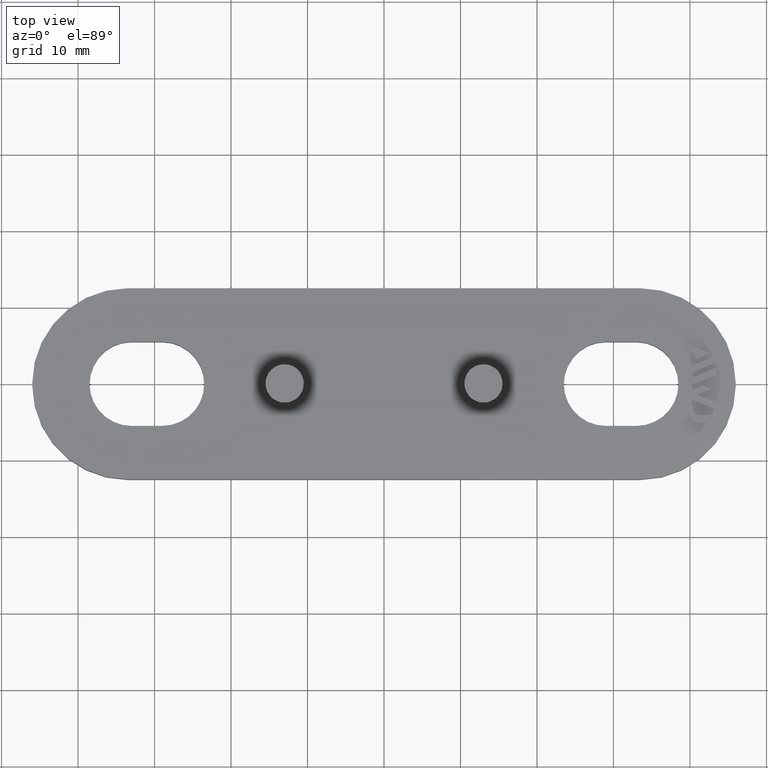
[diagram: clean part render]
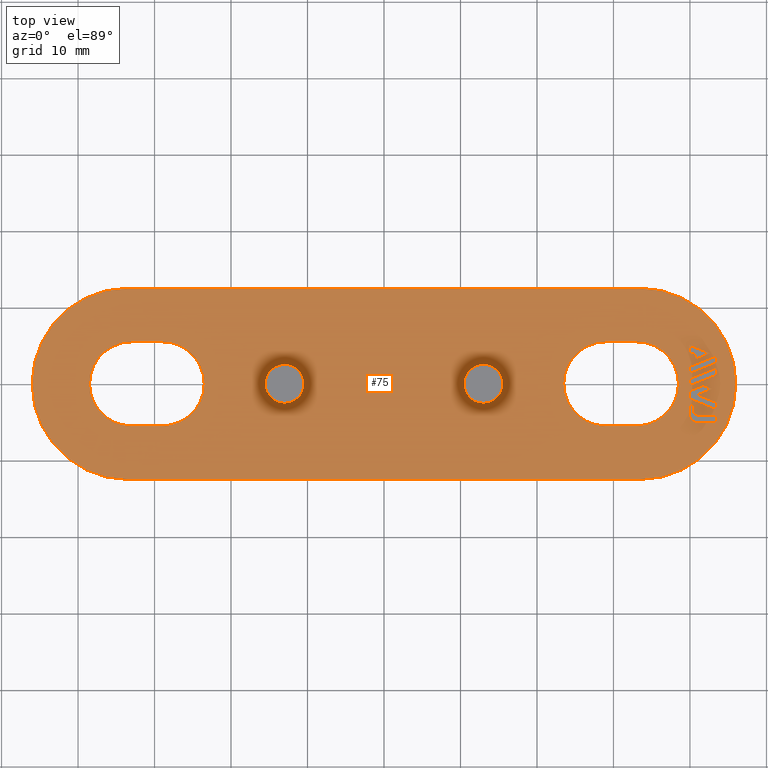
[diagram: same view with one face highlighted and labeled with its STEP entity id]
A machine part, top view. The second image highlights one B-rep face of the part: STEP entity #75.
In plain terms, the highlighted planar face has unit normal (0, -0, -1).
Its self-contained STEP definition (entity closure, byte-faithful):
#75 = ADVANCED_FACE( '', ( #362, #363, #364, #365, #366, #367, #368, #369, #370, #371 ), #372, .F. );
#362 = FACE_BOUND( '', #986, .T. );
#363 = FACE_BOUND( '', #987, .T. );
#364 = FACE_BOUND( '', #988, .T. );
#365 = FACE_OUTER_BOUND( '', #989, .T. );
#366 = FACE_BOUND( '', #990, .T. );
#367 = FACE_BOUND( '', #991, .T. );
#368 = FACE_BOUND( '', #992, .T. );
#369 = FACE_BOUND( '', #993, .T. );
#370 = FACE_BOUND( '', #994, .T. );
#371 = FACE_BOUND( '', #995, .T. );
#372 = PLANE( '', #996 );
#986 = EDGE_LOOP( '', ( #1610, #1611, #1612, #1613, #1614, #1615, #1616 ) );
#987 = EDGE_LOOP( '', ( #1617, #1618, #1619, #1620 ) );
#988 = EDGE_LOOP( '', ( #1621, #1622, #1623, #1624, #1625, #1626 ) );
#989 = EDGE_LOOP( '', ( #1627, #1628, #1629, #1630, #1631, #1632 ) );
#990 = EDGE_LOOP( '', ( #1633, #1634, #1635, #1636, #1637, #1638 ) );
#991 = EDGE_LOOP( '', ( #1639 ) );
#992 = EDGE_LOOP( '', ( #1640 ) );
#993 = EDGE_LOOP( '', ( #1641, #1642, #1643, #1644, #1645 ) );
#994 = EDGE_LOOP( '', ( #1646, #1647, #1648, #1649 ) );
#995 = EDGE_LOOP( '', ( #1650, #1651, #1652, #1653, #1654, #1655, #1656, #1657 ) );
#996 = AXIS2_PLACEMENT_3D( '', #1658, #1659, #1660 );
#1610 = ORIENTED_EDGE( '', *, *, #3908, .F. );
#1611 = ORIENTED_EDGE( '', *, *, #3909, .F. );
#1612 = ORIENTED_EDGE( '', *, *, #3910, .F. );
#1613 = ORIENTED_EDGE( '', *, *, #3911, .F. );
#1614 = ORIENTED_EDGE( '', *, *, #3912, .F. );
#1615 = ORIENTED_EDGE( '', *, *, #3913, .F. );
#1616 = ORIENTED_EDGE( '', *, *, #3914, .F. );
#1617 = ORIENTED_EDGE( '', *, *, #3915, .F. );
#1618 = ORIENTED_EDGE( '', *, *, #3916, .F. );
#1619 = ORIENTED_EDGE( '', *, *, #3917, .F. );
#1620 = ORIENTED_EDGE( '', *, *, #3918, .F. );
#1621 = ORIENTED_EDGE( '', *, *, #3919, .F. );
#1622 = ORIENTED_EDGE( '', *, *, #3920, .F. );
#1623 = ORIENTED_EDGE( '', *, *, #3921, .F. );
#1624 = ORIENTED_EDGE( '', *, *, #3922, .F. );
#1625 = ORIENTED_EDGE( '', *, *, #3923, .F. );
#1626 = ORIENTED_EDGE( '', *, *, #3924, .F. );
#1627 = ORIENTED_EDGE( '', *, *, #3925, .F. );
#1628 = ORIENTED_EDGE( '', *, *, #3926, .F. );
#1629 = ORIENTED_EDGE( '', *, *, #3927, .F. );
#1630 = ORIENTED_EDGE( '', *, *, #3928, .F. );
#1631 = ORIENTED_EDGE( '', *, *, #3929, .F. );
#1632 = ORIENTED_EDGE( '', *, *, #3930, .F. );
#1633 = ORIENTED_EDGE( '', *, *, #3931, .F. );
#1634 = ORIENTED_EDGE( '', *, *, #3932, .F. );
#1635 = ORIENTED_EDGE( '', *, *, #3933, .F. );
#1636 = ORIENTED_EDGE( '', *, *, #3934, .F. );
#1637 = ORIENTED_EDGE( '', *, *, #3935, .F. );
#1638 = ORIENTED_EDGE( '', *, *, #3936, .F. );
#1639 = ORIENTED_EDGE( '', *, *, #3937, .T. );
#1640 = ORIENTED_EDGE( '', *, *, #3938, .T. );
#1641 = ORIENTED_EDGE( '', *, *, #3939, .F. );
#1642 = ORIENTED_EDGE( '', *, *, #3940, .F. );
#1643 = ORIENTED_EDGE( '', *, *, #3941, .F. );
#1644 = ORIENTED_EDGE( '', *, *, #3942, .F. );
#1645 = ORIENTED_EDGE( '', *, *, #3943, .F. );
#1646 = ORIENTED_EDGE( '', *, *, #3944, .F. );
#1647 = ORIENTED_EDGE( '', *, *, #3945, .F. );
#1648 = ORIENTED_EDGE( '', *, *, #3946, .F. );
#1649 = ORIENTED_EDGE( '', *, *, #3947, .F. );
#1650 = ORIENTED_EDGE( '', *, *, #3948, .F. );
#1651 = ORIENTED_EDGE( '', *, *, #3949, .F. );
#1652 = ORIENTED_EDGE( '', *, *, #3950, .F. );
#1653 = ORIENTED_EDGE( '', *, *, #3951, .F. );
#1654 = ORIENTED_EDGE( '', *, *, #3952, .F. );
#1655 = ORIENTED_EDGE( '', *, *, #3953, .F. );
#1656 = ORIENTED_EDGE( '', *, *, #3954, .F. );
#1657 = ORIENTED_EDGE( '', *, *, #3955, .F. );
#1658 = CARTESIAN_POINT( '', ( 33.5000000000000, -8.36746579142844E-015, 4.99999999999998 ) );
#1659 = DIRECTION( '', ( 0.000000000000000, -6.12303176911189E-017, -1.00000000000000 ) );
#1660 = DIRECTION( '', ( 0.000000000000000, -1.00000000000000, 6.12303176911189E-017 ) );
#3908 = EDGE_CURVE( '', #4628, #4629, #4630, .T. );
#3909 = EDGE_CURVE( '', #4631, #4628, #4632, .T. );
#3910 = EDGE_CURVE( '', #4633, #4631, #4634, .T. );
#3911 = EDGE_CURVE( '', #4635, #4633, #4636, .T. );
#3912 = EDGE_CURVE( '', #4637, #4635, #4638, .T. );
#3913 = EDGE_CURVE( '', #4639, #4637, #4640, .T. );
#3914 = EDGE_CURVE( '', #4629, #4639, #4641, .T. );
#3915 = EDGE_CURVE( '', #4642, #4643, #4644, .T. );
#3916 = EDGE_CURVE( '', #4645, #4642, #4646, .T. );
#3917 = EDGE_CURVE( '', #4647, #4645, #4648, .T. );
#3918 = EDGE_CURVE( '', #4643, #4647, #4649, .T. );
#3919 = EDGE_CURVE( '', #4650, #4651, #4652, .T. );
#3920 = EDGE_CURVE( '', #4653, #4650, #4654, .T. );
#3921 = EDGE_CURVE( '', #4655, #4653, #4656, .T. );
#3922 = EDGE_CURVE( '', #4657, #4655, #4658, .T. );
#3923 = EDGE_CURVE( '', #4659, #4657, #4660, .T. );
#3924 = EDGE_CURVE( '', #4651, #4659, #4661, .T. );
#3925 = EDGE_CURVE( '', #4662, #4663, #4664, .T. );
#3926 = EDGE_CURVE( '', #4665, #4662, #4666, .T. );
#3927 = EDGE_CURVE( '', #4667, #4665, #4668, .T. );
#3928 = EDGE_CURVE( '', #4669, #4667, #4670, .T. );
#3929 = EDGE_CURVE( '', #4671, #4669, #4672, .T. );
#3930 = EDGE_CURVE( '', #4663, #4671, #4673, .T. );
#3931 = EDGE_CURVE( '', #4674, #4675, #4676, .T. );
#3932 = EDGE_CURVE( '', #4677, #4674, #4678, .T. );
#3933 = EDGE_CURVE( '', #4679, #4677, #4680, .T. );
#3934 = EDGE_CURVE( '', #4681, #4679, #4682, .T. );
#3935 = EDGE_CURVE( '', #4683, #4681, #4684, .T. );
#3936 = EDGE_CURVE( '', #4675, #4683, #4685, .T. );
#3937 = EDGE_CURVE( '', #4686, #4686, #4687, .T. );
#3938 = EDGE_CURVE( '', #4688, #4688, #4689, .T. );
#3939 = EDGE_CURVE( '', #4690, #4691, #4692, .T. );
#3940 = EDGE_CURVE( '', #4693, #4690, #4694, .T. );
#3941 = EDGE_CURVE( '', #4695, #4693, #4696, .T. );
#3942 = EDGE_CURVE( '', #4697, #4695, #4698, .T. );
#3943 = EDGE_CURVE( '', #4691, #4697, #4699, .T. );
#3944 = EDGE_CURVE( '', #4700, #4701, #4702, .T. );
#3945 = EDGE_CURVE( '', #4703, #4700, #4704, .T. );
#3946 = EDGE_CURVE( '', #4705, #4703, #4706, .T. );
#3947 = EDGE_CURVE( '', #4701, #4705, #4707, .T. );
#3948 = EDGE_CURVE( '', #4708, #4709, #4710, .T. );
#3949 = EDGE_CURVE( '', #4711, #4708, #4712, .T. );
#3950 = EDGE_CURVE( '', #4713, #4711, #4714, .T. );
#3951 = EDGE_CURVE( '', #4715, #4713, #4716, .T. );
#3952 = EDGE_CURVE( '', #4717, #4715, #4718, .T. );
#3953 = EDGE_CURVE( '', #4719, #4717, #4720, .T. );
#3954 = EDGE_CURVE( '', #4721, #4719, #4722, .T. );
#3955 = EDGE_CURVE( '', #4709, #4721, #4723, .T. );
#4628 = VERTEX_POINT( '', #5832 );
#4629 = VERTEX_POINT( '', #5833 );
#4630 = LINE( '', #5834, #5835 );
#4631 = VERTEX_POINT( '', #5836 );
#4632 = LINE( '', #5837, #5838 );
#4633 = VERTEX_POINT( '', #5839 );
#4634 = LINE( '', #5840, #5841 );
#4635 = VERTEX_POINT( '', #5842 );
#4636 = LINE( '', #5843, #5844 );
#4637 = VERTEX_POINT( '', #5845 );
#4638 = LINE( '', #5846, #5847 );
#4639 = VERTEX_POINT( '', #5848 );
#4640 = LINE( '', #5849, #5850 );
#4641 = LINE( '', #5851, #5852 );
#4642 = VERTEX_POINT( '', #5853 );
#4643 = VERTEX_POINT( '', #5854 );
#4644 = LINE( '', #5855, #5856 );
#4645 = VERTEX_POINT( '', #5857 );
#4646 = LINE( '', #5858, #5859 );
#4647 = VERTEX_POINT( '', #5860 );
#4648 = LINE( '', #5861, #5862 );
#4649 = LINE( '', #5863, #5864 );
#4650 = VERTEX_POINT( '', #5865 );
#4651 = VERTEX_POINT( '', #5866 );
#4652 = CIRCLE( '', #5867, 5.49999999999999 );
#4653 = VERTEX_POINT( '', #5868 );
#4654 = CIRCLE( '', #5869, 5.49999999999999 );
#4655 = VERTEX_POINT( '', #5870 );
#4656 = LINE( '', #5871, #5872 );
#4657 = VERTEX_POINT( '', #5873 );
#4658 = CIRCLE( '', #5874, 5.49999999999999 );
#4659 = VERTEX_POINT( '', #5875 );
#4660 = CIRCLE( '', #5876, 5.49999999999999 );
#4661 = LINE( '', #5877, #5878 );
#4662 = VERTEX_POINT( '', #5879 );
#4663 = VERTEX_POINT( '', #5880 );
#4664 = CIRCLE( '', #5881, 12.5000000000000 );
#4665 = VERTEX_POINT( '', #5882 );
#4666 = CIRCLE( '', #5883, 12.5000000000000 );
#4667 = VERTEX_POINT( '', #5884 );
#4668 = LINE( '', #5885, #5886 );
#4669 = VERTEX_POINT( '', #5887 );
#4670 = CIRCLE( '', #5888, 12.5000000000000 );
#4671 = VERTEX_POINT( '', #5889 );
#4672 = CIRCLE( '', #5890, 12.5000000000000 );
#4673 = LINE( '', #5891, #5892 );
#4674 = VERTEX_POINT( '', #5893 );
#4675 = VERTEX_POINT( '', #5894 );
#4676 = CIRCLE( '', #5895, 5.50000000000000 );
#4677 = VERTEX_POINT( '', #5896 );
#4678 = CIRCLE( '', #5897, 5.50000000000000 );
#4679 = VERTEX_POINT( '', #5898 );
#4680 = LINE( '', #5899, #5900 );
#4681 = VERTEX_POINT( '', #5901 );
#4682 = CIRCLE( '', #5902, 5.50000000000000 );
#4683 = VERTEX_POINT( '', #5903 );
#4684 = CIRCLE( '', #5904, 5.50000000000000 );
#4685 = LINE( '', #5905, #5906 );
#4686 = VERTEX_POINT( '', #5907 );
#4687 = CIRCLE( '', #5908, 2.54363766232054 );
#4688 = VERTEX_POINT( '', #5909 );
#4689 = CIRCLE( '', #5910, 2.54363766232054 );
#4690 = VERTEX_POINT( '', #5911 );
#4691 = VERTEX_POINT( '', #5912 );
#4692 = LINE( '', #5913, #5914 );
#4693 = VERTEX_POINT( '', #5915 );
#4694 = LINE( '', #5916, #5917 );
#4695 = VERTEX_POINT( '', #5918 );
#4696 = LINE( '', #5919, #5920 );
#4697 = VERTEX_POINT( '', #5921 );
#4698 = LINE( '', #5922, #5923 );
#4699 = LINE( '', #5924, #5925 );
#4700 = VERTEX_POINT( '', #5926 );
#4701 = VERTEX_POINT( '', #5927 );
#4702 = LINE( '', #5928, #5929 );
#4703 = VERTEX_POINT( '', #5930 );
#4704 = LINE( '', #5931, #5932 );
#4705 = VERTEX_POINT( '', #5933 );
#4706 = LINE( '', #5934, #5935 );
#4707 = LINE( '', #5936, #5937 );
#4708 = VERTEX_POINT( '', #5938 );
#4709 = VERTEX_POINT( '', #5939 );
#4710 = CIRCLE( '', #5940, 1.20000000000000 );
#4711 = VERTEX_POINT( '', #5941 );
#4712 = LINE( '', #5942, #5943 );
#4713 = VERTEX_POINT( '', #5944 );
#4714 = LINE( '', #5945, #5946 );
#4715 = VERTEX_POINT( '', #5947 );
#4716 = LINE( '', #5948, #5949 );
#4717 = VERTEX_POINT( '', #5950 );
#4718 = CIRCLE( '', #5951, 0.800000000000000 );
#4719 = VERTEX_POINT( '', #5952 );
#4720 = LINE( '', #5953, #5954 );
#4721 = VERTEX_POINT( '', #5955 );
#4722 = LINE( '', #5956, #5957 );
#4723 = LINE( '', #5958, #5959 );
#5832 = CARTESIAN_POINT( '', ( 39.9000000000000, -1.94153815900073, 4.99999999999997 ) );
#5833 = CARTESIAN_POINT( '', ( 43.4973661704647, -3.39489558569046, 4.99999999999996 ) );
#5834 = CARTESIAN_POINT( '', ( 39.9000000000000, -1.94153815900073, 4.99999999999997 ) );
#5835 = VECTOR( '', #7676, 1000.00000000000 );
#5836 = CARTESIAN_POINT( '', ( 39.9000000000000, -0.958868987414691, 4.99999999999997 ) );
#5837 = CARTESIAN_POINT( '', ( 39.9000000000000, -0.958868987414693, 4.99999999999997 ) );
#5838 = VECTOR( '', #7677, 1000.00000000000 );
#5839 = CARTESIAN_POINT( '', ( 41.7327570440905, -0.218257757464921, 4.99999999999996 ) );
#5840 = CARTESIAN_POINT( '', ( 41.7327570440905, -0.218257757464916, 4.99999999999997 ) );
#5841 = VECTOR( '', #7678, 1000.00000000000 );
#5842 = CARTESIAN_POINT( '', ( 42.8833737475896, -0.683055647481117, 4.99999999999996 ) );
#5843 = CARTESIAN_POINT( '', ( 42.8833737475896, -0.683055647481120, 4.99999999999996 ) );
#5844 = VECTOR( '', #7679, 1000.00000000000 );
#5845 = CARTESIAN_POINT( '', ( 40.9849571645034, -1.45010139340517, 4.99999999999996 ) );
#5846 = CARTESIAN_POINT( '', ( 40.9849571645034, -1.45010139340517, 4.99999999999996 ) );
#5847 = VECTOR( '', #7680, 1000.00000000000 );
#5848 = CARTESIAN_POINT( '', ( 43.4973661704647, -2.46529980565807, 4.99999999999996 ) );
#5849 = CARTESIAN_POINT( '', ( 43.4973661704647, -2.46529980565806, 4.99999999999996 ) );
#5850 = VECTOR( '', #7681, 1000.00000000000 );
#5851 = CARTESIAN_POINT( '', ( 43.4973661704647, -3.39489558569046, 4.99999999999996 ) );
#5852 = VECTOR( '', #7682, 1000.00000000000 );
#5853 = CARTESIAN_POINT( '', ( 39.9000000000000, 1.30847678860045, 4.99999999999996 ) );
#5854 = CARTESIAN_POINT( '', ( 43.4973661704647, 2.76206261720173, 4.99999999999996 ) );
#5855 = CARTESIAN_POINT( '', ( 39.9000000000000, 1.30847678860044, 4.99999999999996 ) );
#5856 = VECTOR( '', #7683, 1000.00000000000 );
#5857 = CARTESIAN_POINT( '', ( 39.9000000000000, 2.23799443113679, 4.99999999999996 ) );
#5858 = CARTESIAN_POINT( '', ( 39.9000000000000, 2.23799443113679, 4.99999999999996 ) );
#5859 = VECTOR( '', #7684, 1000.00000000000 );
#5860 = CARTESIAN_POINT( '', ( 43.4973661704647, 3.69137590013299, 4.99999999999996 ) );
#5861 = CARTESIAN_POINT( '', ( 43.4973661704647, 3.69137590013299, 4.99999999999996 ) );
#5862 = VECTOR( '', #7685, 1000.00000000000 );
#5863 = CARTESIAN_POINT( '', ( 43.4973661704647, 2.76206261720173, 4.99999999999996 ) );
#5864 = VECTOR( '', #7686, 1000.00000000000 );
#5865 = CARTESIAN_POINT( '', ( -23.5000000000000, 1.33165777807404E-014, 5.00000199996885 ) );
#5866 = CARTESIAN_POINT( '', ( -29.0000000000000, 5.50000000000000, 5.00000199996885 ) );
#5867 = AXIS2_PLACEMENT_3D( '', #7687, #7688, #7689 );
#5868 = CARTESIAN_POINT( '', ( -29.0000000000000, -5.49999999999998, 5.00000199996885 ) );
#5869 = AXIS2_PLACEMENT_3D( '', #7690, #7691, #7692 );
#5870 = CARTESIAN_POINT( '', ( -33.0000000000000, -5.49999999999998, 5.00000199996885 ) );
#5871 = CARTESIAN_POINT( '', ( -33.0000000000000, -5.49999999999998, 5.00000199996885 ) );
#5872 = VECTOR( '', #7693, 1000.00000000000 );
#5873 = CARTESIAN_POINT( '', ( -38.5000000000000, 9.84713082878676E-015, 5.00000199996885 ) );
#5874 = AXIS2_PLACEMENT_3D( '', #7694, #7695, #7696 );
#5875 = CARTESIAN_POINT( '', ( -33.0000000000000, 5.50000000000000, 5.00000199996885 ) );
#5876 = AXIS2_PLACEMENT_3D( '', #7697, #7698, #7699 );
#5877 = CARTESIAN_POINT( '', ( -29.0000000000000, 5.50000000000000, 5.00000199996885 ) );
#5878 = VECTOR( '', #7700, 1000.00000000000 );
#5879 = CARTESIAN_POINT( '', ( 46.0000000000000, -8.36746579142844E-015, 4.99999999999998 ) );
#5880 = CARTESIAN_POINT( '', ( 33.5000000000000, -12.5000000000000, 4.99999999999998 ) );
#5881 = AXIS2_PLACEMENT_3D( '', #7701, #7702, #7703 );
#5882 = CARTESIAN_POINT( '', ( 33.5000000000000, 12.5000000000000, 4.99999999999998 ) );
#5883 = AXIS2_PLACEMENT_3D( '', #7704, #7705, #7706 );
#5884 = CARTESIAN_POINT( '', ( -33.5000000000000, 12.5000000000000, 4.99999999999998 ) );
#5885 = CARTESIAN_POINT( '', ( -33.5000000000000, 12.5000000000000, 4.99999999999998 ) );
#5886 = VECTOR( '', #7707, 1000.00000000000 );
#5887 = CARTESIAN_POINT( '', ( -46.0000000000000, -1.01021892674053E-014, 4.99999999999998 ) );
#5888 = AXIS2_PLACEMENT_3D( '', #7708, #7709, #7710 );
#5889 = CARTESIAN_POINT( '', ( -33.5000000000000, -12.5000000000000, 4.99999999999998 ) );
#5890 = AXIS2_PLACEMENT_3D( '', #7711, #7712, #7713 );
#5891 = CARTESIAN_POINT( '', ( 33.5000000000000, -12.5000000000000, 4.99999999999998 ) );
#5892 = VECTOR( '', #7714, 1000.00000000000 );
#5893 = CARTESIAN_POINT( '', ( 38.5000000000000, 5.51032232253570E-015, 5.00000499996889 ) );
#5894 = CARTESIAN_POINT( '', ( 33.0000000000000, 5.50000000000000, 5.00000499996889 ) );
#5895 = AXIS2_PLACEMENT_3D( '', #7715, #7716, #7717 );
#5896 = CARTESIAN_POINT( '', ( 33.0000000000000, -5.49999999999999, 5.00000499996889 ) );
#5897 = AXIS2_PLACEMENT_3D( '', #7718, #7719, #7720 );
#5898 = CARTESIAN_POINT( '', ( 29.0000000000000, -5.50000000000000, 5.00000499996889 ) );
#5899 = CARTESIAN_POINT( '', ( 29.0000000000000, -5.49999999999999, 5.00000499996889 ) );
#5900 = VECTOR( '', #7721, 1000.00000000000 );
#5901 = CARTESIAN_POINT( '', ( 23.5000000000000, 3.77559884655889E-015, 5.00000499996889 ) );
#5902 = AXIS2_PLACEMENT_3D( '', #7722, #7723, #7724 );
#5903 = CARTESIAN_POINT( '', ( 29.0000000000000, 5.50000000000000, 5.00000499996889 ) );
#5904 = AXIS2_PLACEMENT_3D( '', #7725, #7726, #7727 );
#5905 = CARTESIAN_POINT( '', ( 33.0000000000000, 5.50000000000000, 5.00000499996889 ) );
#5906 = VECTOR( '', #7728, 1000.00000000000 );
#5907 = CARTESIAN_POINT( '', ( -13.0000000000000, 2.54363766232054, 4.99999999999999 ) );
#5908 = AXIS2_PLACEMENT_3D( '', #7729, #7730, #7731 );
#5909 = CARTESIAN_POINT( '', ( 13.0000000000000, 2.54363766232055, 4.99999999999999 ) );
#5910 = AXIS2_PLACEMENT_3D( '', #7732, #7733, #7734 );
#5911 = CARTESIAN_POINT( '', ( 39.9000000000000, 4.13597825270635, 4.99999999999996 ) );
#5912 = CARTESIAN_POINT( '', ( 40.7308540273208, 3.80004712542063, 4.99999999999997 ) );
#5913 = CARTESIAN_POINT( '', ( 39.9000000000000, 4.13597825270635, 4.99999999999996 ) );
#5914 = VECTOR( '', #7735, 1000.00000000000 );
#5915 = CARTESIAN_POINT( '', ( 39.9000000000000, 5.06529153563761, 4.99999999999996 ) );
#5916 = CARTESIAN_POINT( '', ( 39.9000000000000, 5.06529153563761, 4.99999999999996 ) );
#5917 = VECTOR( '', #7736, 1000.00000000000 );
#5918 = CARTESIAN_POINT( '', ( 42.5972101947165, 3.97568819540709, 4.99999999999996 ) );
#5919 = CARTESIAN_POINT( '', ( 42.5972101947165, 3.97568819540709, 4.99999999999996 ) );
#5920 = VECTOR( '', #7737, 1000.00000000000 );
#5921 = CARTESIAN_POINT( '', ( 40.7308540273208, 3.22197991900258, 4.99999999999997 ) );
#5922 = CARTESIAN_POINT( '', ( 40.7308540273208, 3.22197991900258, 4.99999999999996 ) );
#5923 = VECTOR( '', #7738, 1000.00000000000 );
#5924 = CARTESIAN_POINT( '', ( 40.7308540273208, 3.80004712542063, 4.99999999999997 ) );
#5925 = VECTOR( '', #7739, 1000.00000000000 );
#5926 = CARTESIAN_POINT( '', ( 39.9000000000000, -0.289999999999939, 4.99999999999996 ) );
#5927 = CARTESIAN_POINT( '', ( 43.4973661704647, 1.16358582860134, 4.99999999999996 ) );
#5928 = CARTESIAN_POINT( '', ( 39.9000000000000, -0.289999999999938, 4.99999999999996 ) );
#5929 = VECTOR( '', #7740, 1000.00000000000 );
#5930 = CARTESIAN_POINT( '', ( 39.9000000000000, 0.639583758879218, 4.99999999999996 ) );
#5931 = CARTESIAN_POINT( '', ( 39.9000000000000, 0.639583758879215, 4.99999999999996 ) );
#5932 = VECTOR( '', #7741, 1000.00000000000 );
#5933 = CARTESIAN_POINT( '', ( 43.4973661704647, 2.09316958748050, 4.99999999999996 ) );
#5934 = CARTESIAN_POINT( '', ( 43.4973661704647, 2.09316958748050, 4.99999999999996 ) );
#5935 = VECTOR( '', #7742, 1000.00000000000 );
#5936 = CARTESIAN_POINT( '', ( 43.4973661704647, 1.16358582860134, 4.99999999999996 ) );
#5937 = VECTOR( '', #7743, 1000.00000000000 );
#5938 = CARTESIAN_POINT( '', ( 39.9000000000000, -3.87288028181878, 4.99999999999996 ) );
#5939 = CARTESIAN_POINT( '', ( 41.1000000000000, -5.07288028181877, 4.99999999999997 ) );
#5940 = AXIS2_PLACEMENT_3D( '', #7744, #7745, #7746 );
#5941 = CARTESIAN_POINT( '', ( 39.9000000000000, -2.61040714641548, 4.99999999999996 ) );
#5942 = CARTESIAN_POINT( '', ( 39.9000000000000, -2.61040714641548, 4.99999999999996 ) );
#5943 = VECTOR( '', #7747, 1000.00000000000 );
#5944 = CARTESIAN_POINT( '', ( 40.4231249674404, -2.82176335265055, 4.99999999999996 ) );
#5945 = CARTESIAN_POINT( '', ( 40.4231249674404, -2.82176335265055, 4.99999999999996 ) );
#5946 = VECTOR( '', #7748, 1000.00000000000 );
#5947 = CARTESIAN_POINT( '', ( 40.4231249674404, -3.33274195062391, 4.99999999999996 ) );
#5948 = CARTESIAN_POINT( '', ( 40.4231249674404, -3.33274195062391, 4.99999999999996 ) );
#5949 = VECTOR( '', #7749, 1000.00000000000 );
#5950 = CARTESIAN_POINT( '', ( 41.2231249674404, -4.13274195062391, 4.99999999999996 ) );
#5951 = AXIS2_PLACEMENT_3D( '', #7750, #7751, #7752 );
#5952 = CARTESIAN_POINT( '', ( 43.4973661704647, -4.13274195062390, 4.99999999999996 ) );
#5953 = CARTESIAN_POINT( '', ( 43.4973661704647, -4.13274195062391, 4.99999999999996 ) );
#5954 = VECTOR( '', #7753, 1000.00000000000 );
#5955 = CARTESIAN_POINT( '', ( 43.4973661704647, -5.07288028181877, 4.99999999999997 ) );
#5956 = CARTESIAN_POINT( '', ( 43.4973661704647, -5.07288028181877, 4.99999999999996 ) );
#5957 = VECTOR( '', #7754, 1000.00000000000 );
#5958 = CARTESIAN_POINT( '', ( 41.1000000000000, -5.07288028181877, 4.99999999999997 ) );
#5959 = VECTOR( '', #7755, 1000.00000000000 );
#7676 = DIRECTION( '', ( 0.927190376050330, -0.374590451773198, 1.20367158126883E-017 ) );
#7677 = DIRECTION( '', ( -6.12303176911191E-017, -1.00000000000000, 1.83690953073356E-016 ) );
#7678 = DIRECTION( '', ( -0.927161130553612, -0.374662832411421, 1.25592543341472E-016 ) );
#7679 = DIRECTION( '', ( -0.927206645422846, 0.374550179126525, -1.20283219129908E-017 ) );
#7680 = DIRECTION( '', ( 0.927177805503196, 0.374621565025663, -1.25585983908512E-016 ) );
#7681 = DIRECTION( '', ( -0.927168564368796, 0.374644435760503, -1.20479677189569E-017 ) );
#7682 = DIRECTION( '', ( 6.12303176911191E-017, 1.00000000000000, -1.83690953073356E-016 ) );
#7683 = DIRECTION( '', ( 0.927169929060563, 0.374641058409019, -1.25589082389594E-016 ) );
#7684 = DIRECTION( '', ( -6.12303176911191E-017, -1.00000000000000, 1.83690953073356E-016 ) );
#7685 = DIRECTION( '', ( -0.927188223823226, -0.374595778945159, 1.25581885155853E-016 ) );
#7686 = DIRECTION( '', ( 6.12303176911191E-017, 1.00000000000000, -1.83690953073356E-016 ) );
#7687 = CARTESIAN_POINT( '', ( -29.0000000000000, 1.15818543047636E-014, 5.00000199996885 ) );
#7688 = DIRECTION( '', ( 7.23811190250424E-049, 6.12303176911189E-017, 1.00000000000000 ) );
#7689 = DIRECTION( '', ( 5.78241158658935E-017, -1.00000000000000, 6.12303176911189E-017 ) );
#7690 = CARTESIAN_POINT( '', ( -29.0000000000000, 7.24504561482155E-015, 5.00000199996885 ) );
#7691 = DIRECTION( '', ( 7.23811190250425E-049, 6.12303176911189E-017, 1.00000000000000 ) );
#7692 = DIRECTION( '', ( 5.78241158658935E-017, -1.00000000000000, 6.12303176911189E-017 ) );
#7693 = DIRECTION( '', ( 1.00000000000000, 5.78241158658935E-017, -3.54058898467673E-033 ) );
#7694 = CARTESIAN_POINT( '', ( -33.0000000000000, 8.97976909079836E-015, 5.00000199996885 ) );
#7695 = DIRECTION( '', ( 7.23811190250425E-049, 6.12303176911189E-017, 1.00000000000000 ) );
#7696 = DIRECTION( '', ( 5.78241158658935E-017, -1.00000000000000, 6.12303176911189E-017 ) );
#7697 = CARTESIAN_POINT( '', ( -33.0000000000000, 9.84713082878676E-015, 5.00000199996885 ) );
#7698 = DIRECTION( '', ( 7.23811190250425E-049, 6.12303176911189E-017, 1.00000000000000 ) );
#7699 = DIRECTION( '', ( 5.78241158658936E-017, -1.00000000000000, 6.12303176911189E-017 ) );
#7700 = DIRECTION( '', ( -1.00000000000000, -5.78241158658935E-017, 3.54058898467673E-033 ) );
#7701 = CARTESIAN_POINT( '', ( 33.5000000000000, -8.36746579142844E-015, 4.99999999999998 ) );
#7702 = DIRECTION( '', ( 0.000000000000000, -6.12303176911189E-017, -1.00000000000000 ) );
#7703 = DIRECTION( '', ( 0.000000000000000, 1.00000000000000, -6.12303176911189E-017 ) );
#7704 = CARTESIAN_POINT( '', ( 33.5000000000000, -8.36746579142844E-015, 4.99999999999998 ) );
#7705 = DIRECTION( '', ( 0.000000000000000, -6.12303176911189E-017, -1.00000000000000 ) );
#7706 = DIRECTION( '', ( 0.000000000000000, 1.00000000000000, -6.12303176911189E-017 ) );
#7707 = DIRECTION( '', ( 1.00000000000000, 0.000000000000000, 0.000000000000000 ) );
#7708 = CARTESIAN_POINT( '', ( -33.5000000000000, -8.36746579142844E-015, 4.99999999999998 ) );
#7709 = DIRECTION( '', ( 0.000000000000000, -6.12303176911189E-017, -1.00000000000000 ) );
#7710 = DIRECTION( '', ( 0.000000000000000, 1.00000000000000, -6.12303176911189E-017 ) );
#7711 = CARTESIAN_POINT( '', ( -33.5000000000000, -8.36746579142844E-015, 4.99999999999998 ) );
#7712 = DIRECTION( '', ( 0.000000000000000, -6.12303176911189E-017, -1.00000000000000 ) );
#7713 = DIRECTION( '', ( 0.000000000000000, 1.00000000000000, -6.12303176911189E-017 ) );
#7714 = DIRECTION( '', ( -1.00000000000000, 0.000000000000000, 0.000000000000000 ) );
#7715 = CARTESIAN_POINT( '', ( 33.0000000000000, 3.77559884655889E-015, 5.00000499996889 ) );
#7716 = DIRECTION( '', ( 0.000000000000000, 6.12303176911189E-017, 1.00000000000000 ) );
#7717 = DIRECTION( '', ( 1.15648231731787E-016, -1.00000000000000, 6.12303176911189E-017 ) );
#7718 = CARTESIAN_POINT( '', ( 33.0000000000000, 4.64296058454730E-015, 5.00000499996889 ) );
#7719 = DIRECTION( '', ( 0.000000000000000, 6.12303176911189E-017, 1.00000000000000 ) );
#7720 = DIRECTION( '', ( 1.15648231731787E-016, -1.00000000000000, 6.12303176911189E-017 ) );
#7721 = DIRECTION( '', ( 1.00000000000000, 1.15648231731787E-016, -7.08117796935345E-033 ) );
#7722 = CARTESIAN_POINT( '', ( 29.0000000000000, 3.77559884655889E-015, 5.00000499996889 ) );
#7723 = DIRECTION( '', ( 0.000000000000000, 6.12303176911189E-017, 1.00000000000000 ) );
#7724 = DIRECTION( '', ( 1.15648231731787E-016, -1.00000000000000, 6.12303176911189E-017 ) );
#7725 = CARTESIAN_POINT( '', ( 29.0000000000000, 2.90823710857049E-015, 5.00000499996889 ) );
#7726 = DIRECTION( '', ( 1.44762238050085E-048, 6.12303176911189E-017, 1.00000000000000 ) );
#7727 = DIRECTION( '', ( 1.15648231731787E-016, -1.00000000000000, 6.12303176911189E-017 ) );
#7728 = DIRECTION( '', ( -1.00000000000000, -1.15648231731787E-016, 7.08117796935345E-033 ) );
#7729 = CARTESIAN_POINT( '', ( -13.0000000000000, -8.67944496656115E-016, 4.99999999999999 ) );
#7730 = DIRECTION( '', ( 0.000000000000000, -6.12303176911189E-017, -1.00000000000000 ) );
#7731 = DIRECTION( '', ( 0.000000000000000, 1.00000000000000, -6.12303176911189E-017 ) );
#7732 = CARTESIAN_POINT( '', ( 13.0000000000000, 2.02234875981005E-015, 4.99999999999999 ) );
#7733 = DIRECTION( '', ( 0.000000000000000, -6.12303176911189E-017, -1.00000000000000 ) );
#7734 = DIRECTION( '', ( 0.000000000000000, 1.00000000000000, -6.12303176911189E-017 ) );
#7735 = DIRECTION( '', ( 0.927089140205383, -0.374840934415179, 1.20889259108702E-017 ) );
#7736 = DIRECTION( '', ( -5.71916645986126E-018, -1.00000000000000, 1.83690953073356E-016 ) );
#7737 = DIRECTION( '', ( -0.927200607094025, 0.374565126786346, -1.20314373916615E-017 ) );
#7738 = DIRECTION( '', ( 0.927243990558706, 0.374457717202846, -1.25559939077754E-016 ) );
#7739 = DIRECTION( '', ( -6.12303176911191E-017, -1.00000000000000, 1.83690953073356E-016 ) );
#7740 = DIRECTION( '', ( 0.927169929060563, 0.374641058409019, -1.25589082389594E-016 ) );
#7741 = DIRECTION( '', ( -2.83274922616150E-016, -1.00000000000000, 1.83690953073356E-016 ) );
#7742 = DIRECTION( '', ( -0.927169929060563, -0.374641058409019, 1.25589082389594E-016 ) );
#7743 = DIRECTION( '', ( 2.83274922616151E-016, 1.00000000000000, -1.83690953073356E-016 ) );
#7744 = CARTESIAN_POINT( '', ( 41.1000000000000, -3.87288028181877, 4.99999999999996 ) );
#7745 = DIRECTION( '', ( -3.81196120949500E-015, 3.28640463699235E-015, 1.00000000000000 ) );
#7746 = DIRECTION( '', ( -1.00000000000000, 6.12303176911004E-017, -3.81196120949500E-015 ) );
#7747 = DIRECTION( '', ( -6.12303176911191E-017, -1.00000000000000, 1.83690953073356E-016 ) );
#7748 = DIRECTION( '', ( -0.927183854566787, 0.374606593415912, -1.20400801989318E-017 ) );
#7749 = DIRECTION( '', ( 6.12303176911191E-017, 1.00000000000000, -1.83690953073357E-016 ) );
#7750 = CARTESIAN_POINT( '', ( 41.2231249674404, -3.33274195062391, 4.99999999999996 ) );
#7751 = DIRECTION( '', ( 6.70316700278966E-015, -3.28640463699235E-015, -1.00000000000000 ) );
#7752 = DIRECTION( '', ( -6.12303176911130E-017, -1.00000000000000, 3.28640463699235E-015 ) );
#7753 = DIRECTION( '', ( -1.00000000000000, 1.21945639350307E-016, 6.12303176911183E-017 ) );
#7754 = DIRECTION( '', ( 6.12303176911191E-017, 1.00000000000000, -1.83690953073356E-016 ) );
#7755 = DIRECTION( '', ( 1.00000000000000, -1.21945639350307E-016, -6.12303176911187E-017 ) );